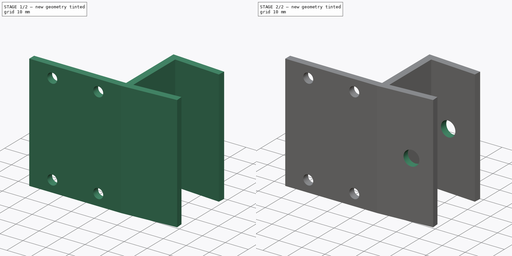
[diagram: build sequence overview — one tinted view per stage of 2, left to right]
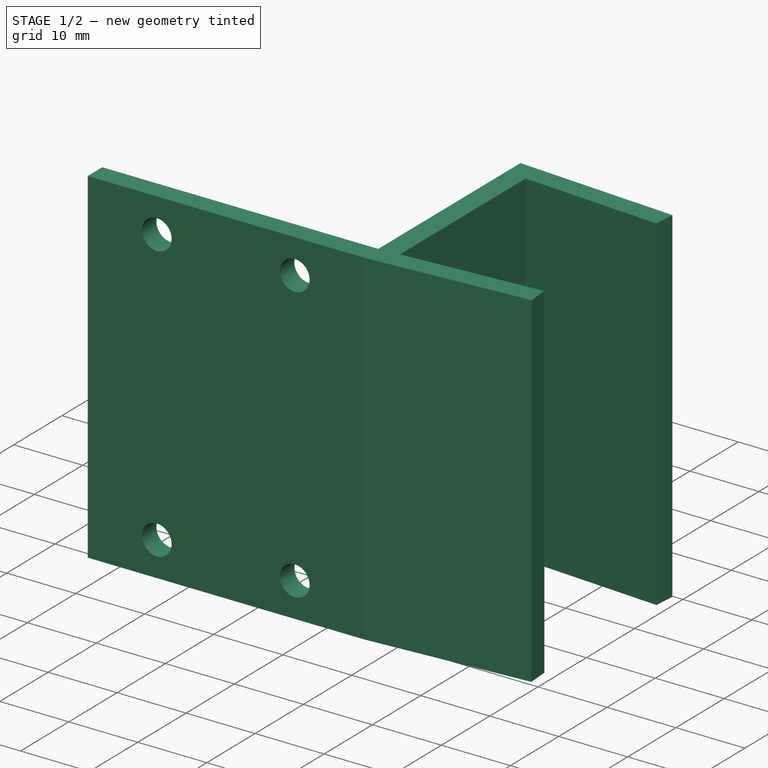
[diagram: stage 1 of 2 — iso view after this stage's code; geometry added in this stage tinted green]
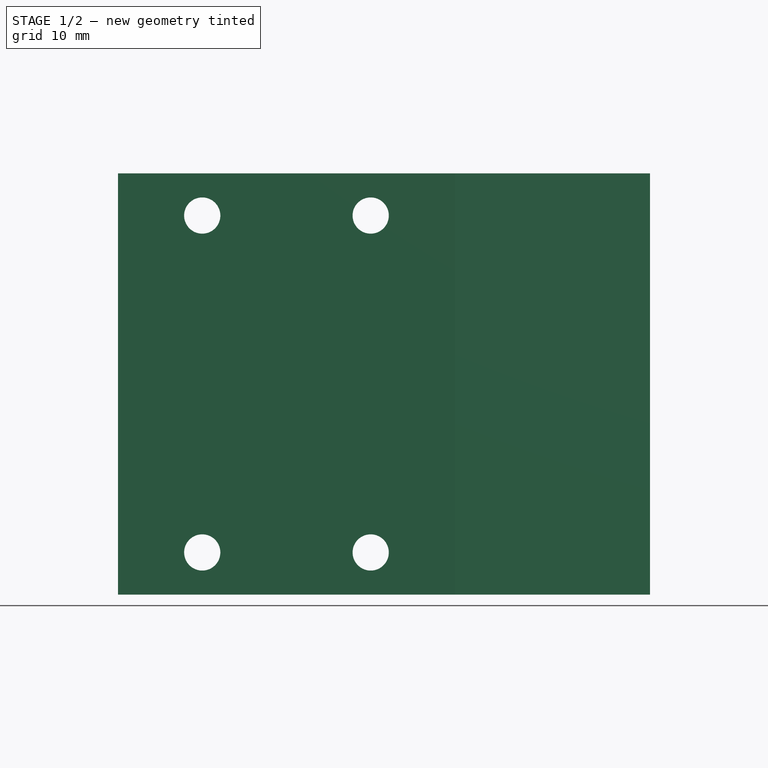
[diagram: stage 1 of 2 — front view after this stage's code; geometry added in this stage tinted green]
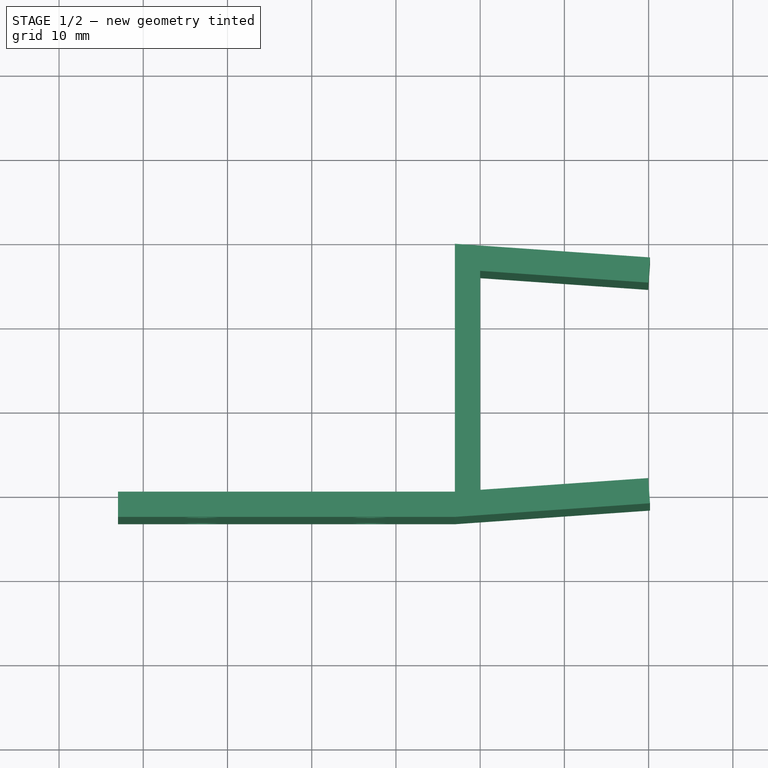
[diagram: stage 1 of 2 — top view after this stage's code; geometry added in this stage tinted green]
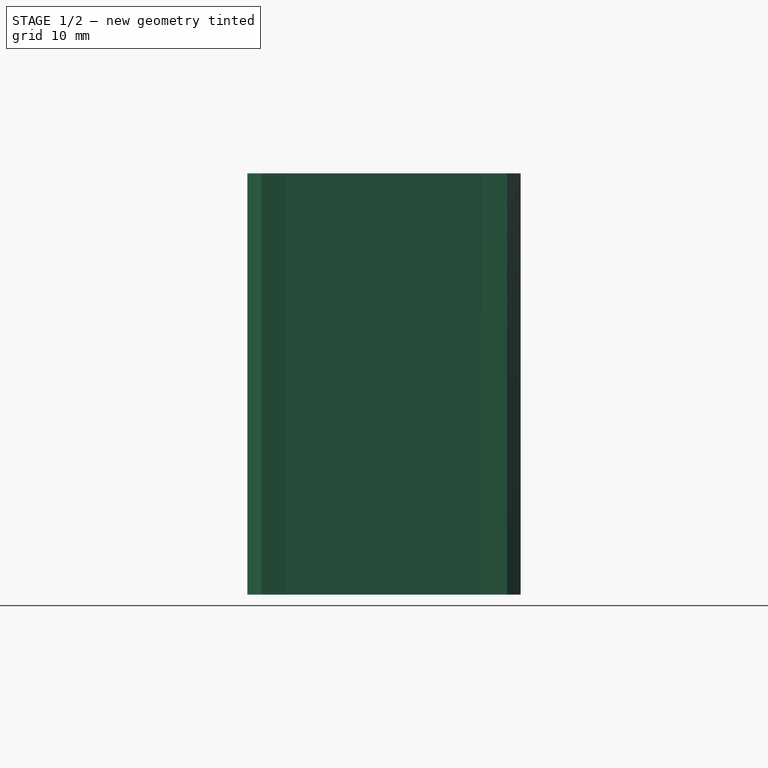
[diagram: stage 1 of 2 — right view after this stage's code; geometry added in this stage tinted green]
FCSTD DOCUMENT  (FreeCAD 1.0R39319 (Git))
Label: uchwyt_na_kamere
License: All rights reserved
LicenseURL: https://en.wikipedia.org/wiki/All_rights_reserved
objects: Sketcher::SketchObject×5, PartDesign::Pocket×3, PartDesign::Pad×1, PartDesign::Body×1
note: 23 computed .brp shape members not serialized (recipe doc carries the construction recipe); baked Part::Feature solids carry a one-line shape summary decoded from their .brp

FEATURE [Sketcher::SketchObject] Sketch
  ArcFitTolerance = 1e-06
  AttachmentSupport = -> [XY_Plane]
  FullyConstrained = true
  MakeInternals = false
  MapMode = 5
  sketch-geometry (11):
    g0: LineSegment StartX=0 StartY=26 StartZ=0 EndX=0 EndY=0 EndZ=0
    g1: LineSegment StartX=0 StartY=0 StartZ=0 EndX=19.9513 EndY=1.39513 EndZ=0
    g2: LineSegment StartX=19.9513 StartY=1.39513 StartZ=0 EndX=20.1606 EndY=-1.59756 EndZ=0
    g3: LineSegment StartX=20.1606 StartY=-1.59756 StartZ=0 EndX=-3 EndY=-3.21711 EndZ=0
    g4: LineSegment StartX=-3 StartY=-0.217106 StartZ=0 EndX=-3 EndY=29.2171 EndZ=0
    g5: LineSegment StartX=-3 StartY=29.2171 StartZ=0 EndX=20.1606 EndY=27.5976 EndZ=0
    g6: LineSegment StartX=20.1606 StartY=27.5976 StartZ=0 EndX=19.9513 EndY=24.6049 EndZ=0
    g7: LineSegment StartX=19.9513 StartY=24.6049 StartZ=0 EndX=0 EndY=26 EndZ=0
    g8: LineSegment StartX=-3 StartY=-3.21711 StartZ=0 EndX=-43 EndY=-3.21711 EndZ=0
    g9: LineSegment StartX=-43 StartY=-3.21711 StartZ=0 EndX=-43 EndY=-0.217106 EndZ=0
    g10: LineSegment StartX=-43 StartY=-0.217106 StartZ=0 EndX=-3 EndY=-0.217106 EndZ=0
  constraints (32):
    c: PointOnObject(g0,g-2)
    c: Coincident(g0,g1)
    c: Coincident(g1,g2)
    c: Coincident(g2,g3)
    c: Vertical(g4)
    c: Coincident(g4,g5)
    c: Coincident(g5,g6)
    c: Coincident(g6,g7)
    c: Coincident(g7,g0)
    c: DistanceY(g0,g0) = 26
    c: Distance(g3,g0) = 3
    c: Angle(g0,g7) = 1.50098
    c: Angle(g1,g0) = 1.50098
    c: Angle(g1,g2) = 1.5708
    c: Distance(g2,g2) = 3
    c: Angle(g2,g3) = 1.5708
    c: Angle(g6,g7) = 1.5708
    c: Angle(g5,g6) = 1.5708
    c: Distance(g6,g6) = 3
    c: Coincident(g0,g-1)
    c: Distance(g7,g7) = 20
    c: Distance(g1,g1) = 20
    c: Coincident(g3,g8)
    c: Horizontal(g8)
    c: Coincident(g8,g9)
    c: Coincident(g9,g10)
    c: Horizontal(g10)
    c: Vertical(g9)
    c: DistanceY(g9,g9) = 3
    c: DistanceX(g8,g8) = 40
    c: Coincident(g4,g10)
    c: Distance(g0,g4) = 3
FEATURE [PartDesign::Pad] Pad
  Direction = (0,0,1)
  Length = 50
  Length2 = 10
  Profile = -> Sketch
  ReferenceAxis = -> Sketch [N_Axis]
  Refine = true
  Suppressed = false
  Type = 0
FEATURE [Sketcher::SketchObject] Sketch001
  ArcFitTolerance = 1e-06
  AttachmentSupport = -> [Pad]
  ExternalGeometry = -> [Pad]
  FullyConstrained = false
  MakeInternals = false
  MapMode = 5
  Placement = pos=(0,-0.217106,0) rot=(0,0.707107,0.707107;3.14159rad)
  sketch-geometry (6):
    g0: LineSegment [constr] StartX=23 StartY=55.6071 StartZ=0 EndX=23 EndY=-13.5342 EndZ=0
    g1: LineSegment [constr] StartX=-23.2589 StartY=25 StartZ=0 EndX=61.0379 EndY=25 EndZ=0
    g2: Circle CenterX=13 CenterY=45 CenterZ=0 NormalX=0 NormalY=0 NormalZ=1 AngleXU=0 Radius=2.15
    g3: Circle CenterX=33 CenterY=45 CenterZ=0 NormalX=0 NormalY=0 NormalZ=1 AngleXU=0 Radius=2.15
    g4: Circle CenterX=13 CenterY=5 CenterZ=0 NormalX=0 NormalY=0 NormalZ=1 AngleXU=0 Radius=2.15
    g5: Circle CenterX=33 CenterY=5 CenterZ=0 NormalX=0 NormalY=0 NormalZ=1 AngleXU=0 Radius=2.15
  constraints (8):
    c: Symmetric(g-4,g-4,g0)
    c: Symmetric(g-4,g-3,g1)
    c: Diameter(g2) = 4.3
    c: Distance(g2,g0) = 10
    c: Distance(g2,g1) = 20
    c: Diameter(g3) = 4.3
    c: Diameter(g4) = 4.3
    c: Diameter(g5) = 4.3
FEATURE [PartDesign::Pocket] Pocket
  BaseFeature = -> Pad
  Direction = (0,-1,2e-16)
  Length = 5
  Length2 = 5
  Profile = -> Sketch001
  ReferenceAxis = -> Sketch001 [N_Axis]
  Refine = true
  Suppressed = false
  Type = 0
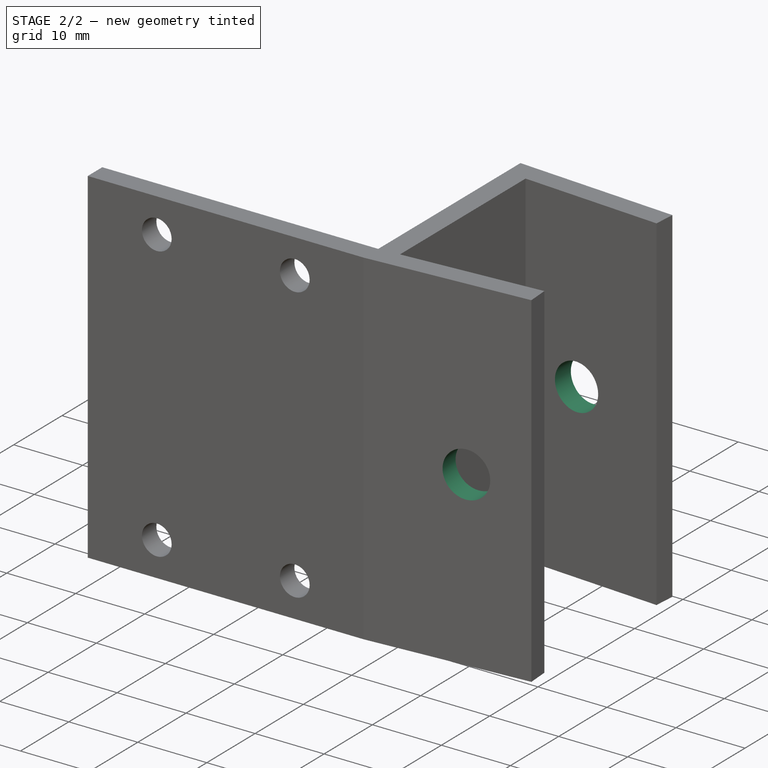
[diagram: stage 2 of 2 — iso view after this stage's code; geometry added in this stage tinted green]
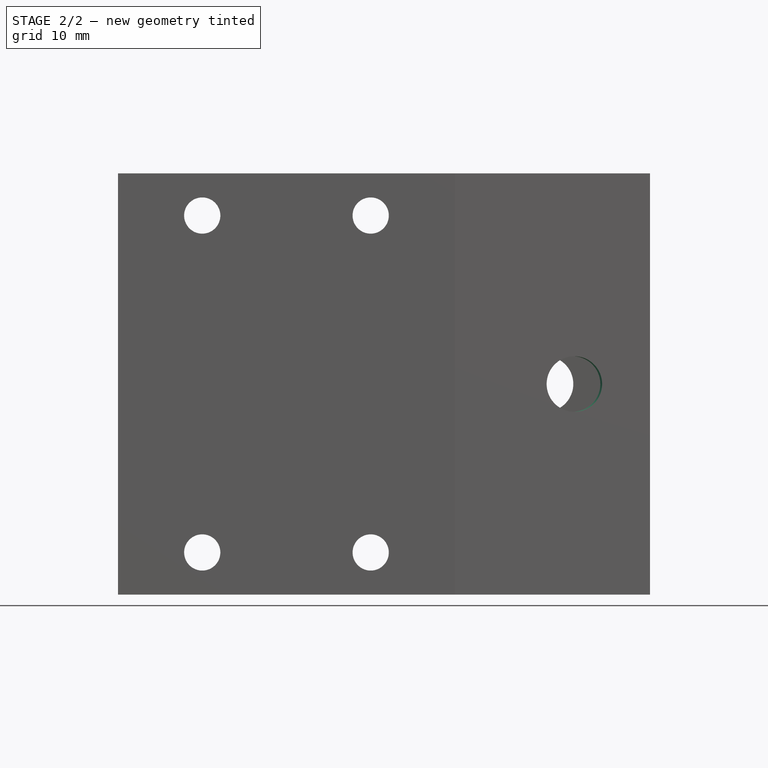
[diagram: stage 2 of 2 — front view after this stage's code; geometry added in this stage tinted green]
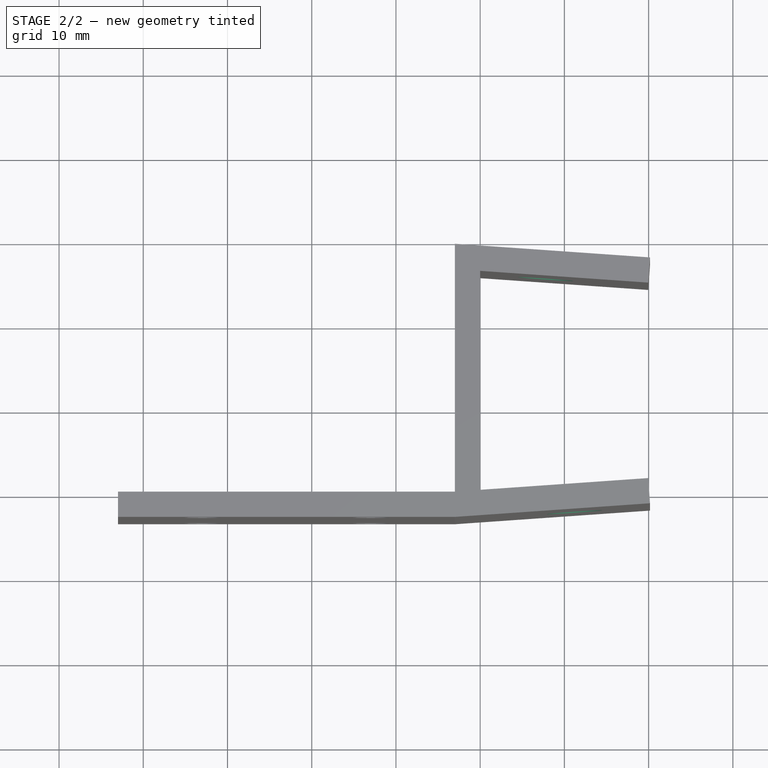
[diagram: stage 2 of 2 — top view after this stage's code; geometry added in this stage tinted green]
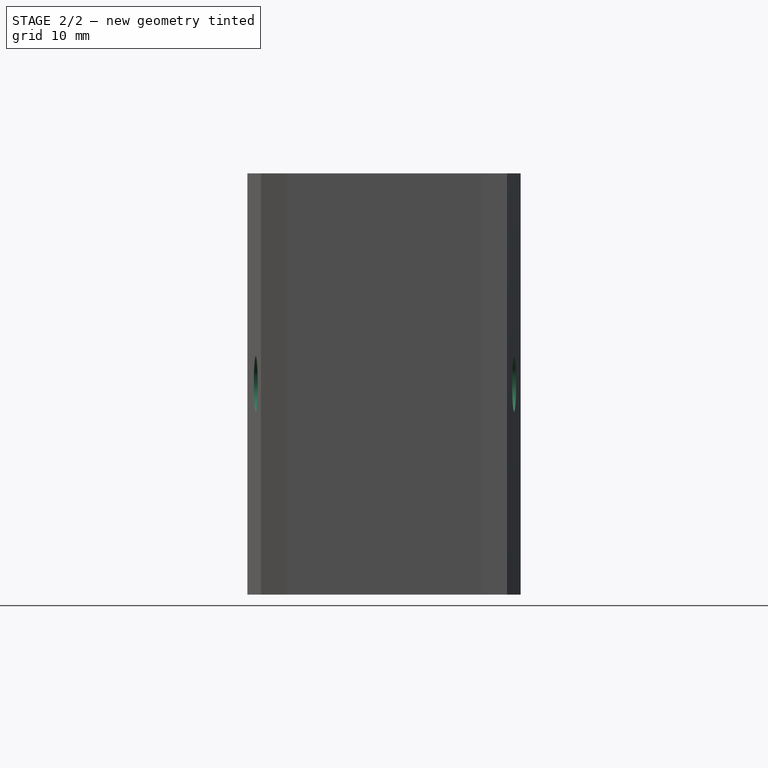
[diagram: stage 2 of 2 — right view after this stage's code; geometry added in this stage tinted green]
FEATURE [Sketcher::SketchObject] Sketch002
  ArcFitTolerance = 1e-06
  AttachmentSupport = -> [Pocket]
  ExternalGeometry = -> [Pocket]
  FullyConstrained = false
  MakeInternals = false
  MapMode = 5
  Placement = pos=(2.01852,28.8662,0) rot=(0.024685,0.706891,0.706891;3.09223rad)
  sketch-geometry (2):
    g0: LineSegment [constr] StartX=11.2169 StartY=25 StartZ=0 EndX=-35.2961 EndY=25 EndZ=0
    g1: Circle CenterX=-5.96923 CenterY=25 CenterZ=0 NormalX=0 NormalY=0 NormalZ=1 AngleXU=0 Radius=3.3
  constraints (4):
    c: Symmetric(g-4,g-3,g0)
    c: PointOnObject(g1,g0)
    c: Diameter(g1) = 6.6
    c: Distance(g1,g-3) = 11
FEATURE [PartDesign::Pocket] Pocket001
  BaseFeature = -> Pocket
  Direction = (-0.0697565,-0.997564,0)
  Length = 5
  Length2 = 5
  Profile = -> Sketch002
  ReferenceAxis = -> Sketch002 [N_Axis]
  Refine = true
  Suppressed = false
  Type = 0
FEATURE [Sketcher::SketchObject] Sketch003
  ArcFitTolerance = 1e-06
  AttachmentSupport = -> [Pocket001]
  ExternalGeometry = -> [Pocket001]
  FullyConstrained = false
  MakeInternals = false
  MapMode = 5
  Placement = pos=(0,0,0) rot=(-0.024685,0.706891,0.706891;3.19095rad)
  sketch-geometry (2):
    g0: LineSegment [constr] StartX=5.45644 StartY=25 StartZ=0 EndX=-29.7642 EndY=25 EndZ=0
    g1: Circle CenterX=-11 CenterY=25 CenterZ=0 NormalX=0 NormalY=0 NormalZ=1 AngleXU=0 Radius=3.3
  constraints (4):
    c: Symmetric(g-4,g-1,g0)
    c: PointOnObject(g1,g0)
    c: Diameter(g1) = 6.6
    c: Distance(g1,g-3) = 11
FEATURE [PartDesign::Pocket] Pocket002
  BaseFeature = -> Pocket001
  Direction = (0.0697565,-0.997564,-2e-16)
  Length = 5
  Length2 = 5
  Profile = -> Sketch003
  ReferenceAxis = -> Sketch003 [N_Axis]
  Refine = true
  Suppressed = false
  Type = 0
FEATURE [Sketcher::SketchObject] Sketch004
  ArcFitTolerance = 1e-06
  AttachmentSupport = -> [Pocket002]
  ExternalGeometry = -> [Pocket002]
  FullyConstrained = true
  MakeInternals = false
  MapMode = 5
  Placement = pos=(0,-0.217106,0) rot=(0,0.707107,0.707107;3.14159rad)
  constraints (2):
    c: Distance(g-3,g-4) = 10
    c: Distance(g-3,g-5) = 5
FEATURE [PartDesign::Body] Body
  AllowCompound = false
  Group = -> [Sketch,Pad,Sketch001,Pocket,Sketch002,Pocket001,Sketch003,Pocket002,Sketch004]
  Origin = -> Origin
  Tip = -> Pocket002
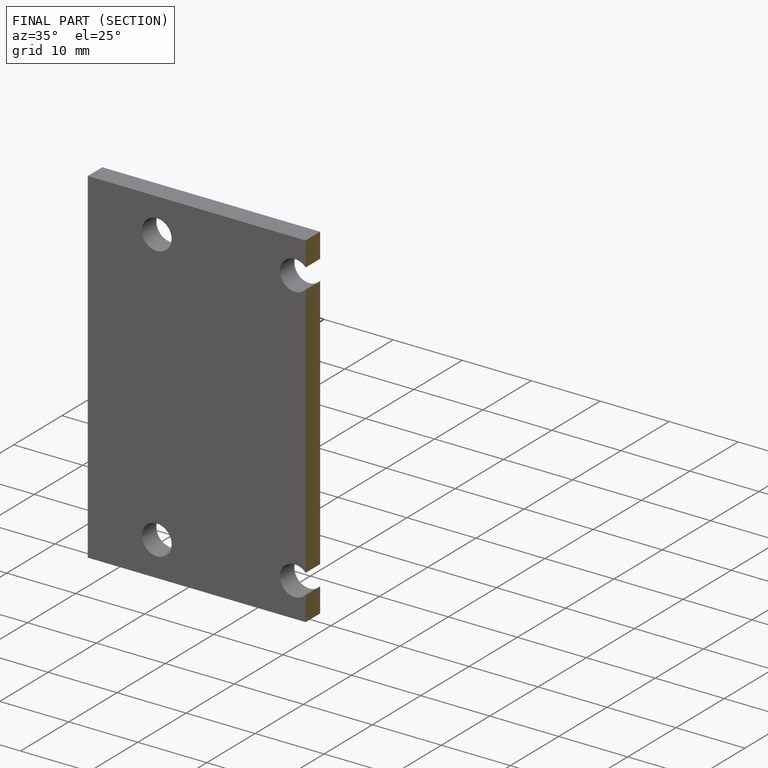
[diagram: finished part — half-section view (interior)]
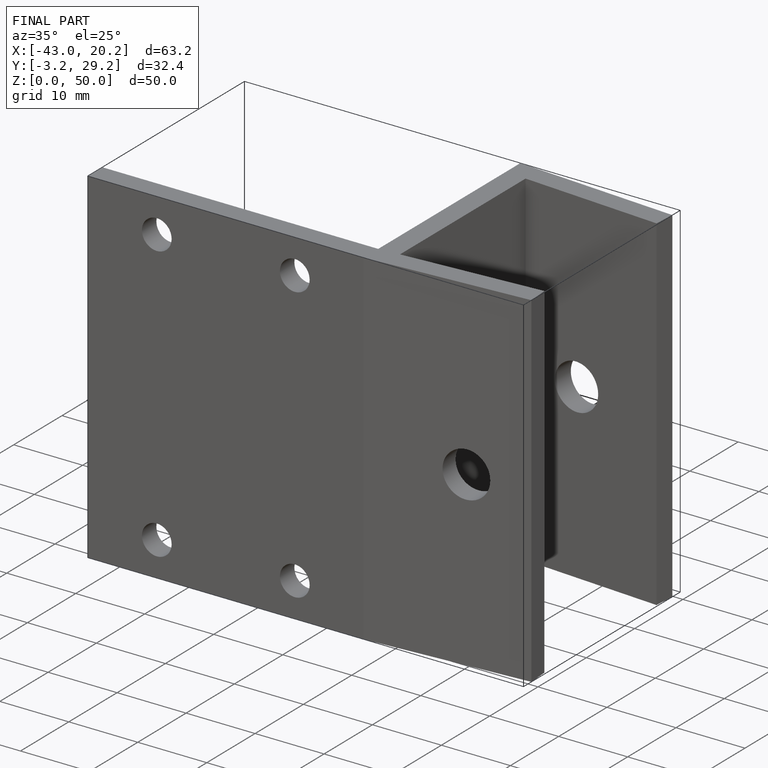
[diagram: finished part — iso view with bounding-box wireframe]
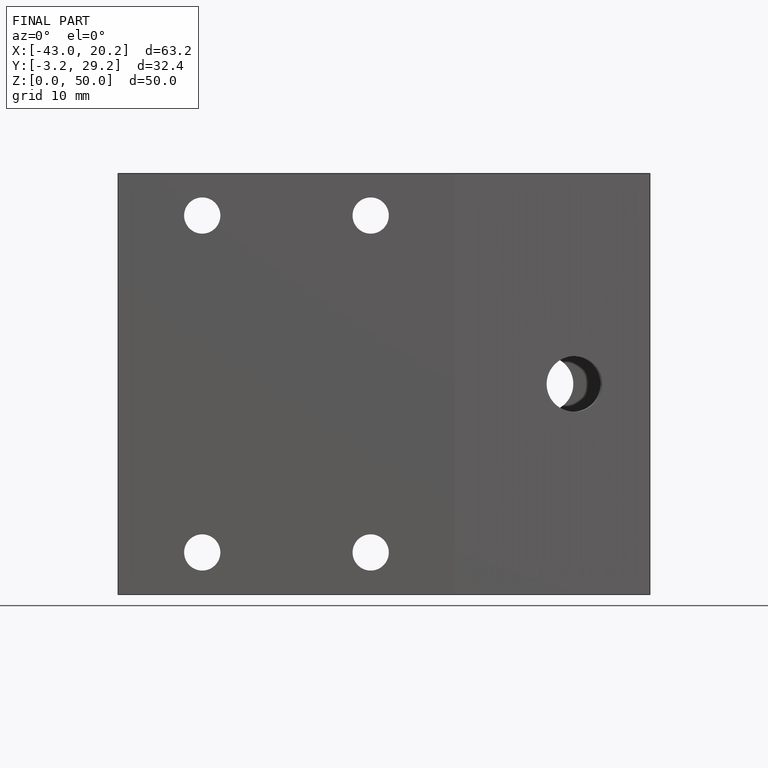
[diagram: finished part — front view with bounding-box wireframe]
